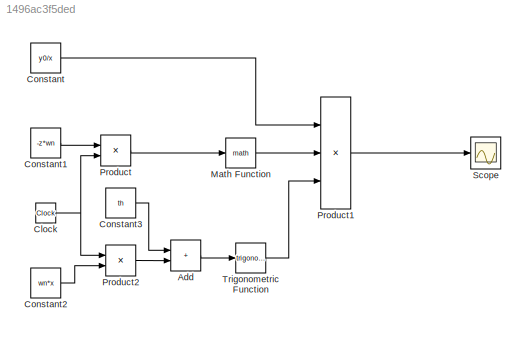
MODEL slx_1496ac3f5ded
KIND model
CONFIG AbsTol = auto
CONFIG EnableMultiTasking = off
CONFIG FixedStep = auto
CONFIG MaxStep = auto
CONFIG MinStep = auto
CONFIG RelTol = 1e-3
CONFIG SampleTimeConstraint = Unconstrained
CONFIG SolverName = VariableStepAuto
CONFIG StartTime = 0.0
CONFIG StopTime = 10.0
BLOCK [Sum] Add
  IconShape = rectangular
BLOCK [Clock] Clock
BLOCK [Constant] Constant
  Value = y0/x
BLOCK [Constant] Constant1
  NameLocation = top
  Value = -z*wn
BLOCK [Constant] Constant2
  Value = wn*x
BLOCK [Constant] Constant3
  NameLocation = top
  Value = th
BLOCK [Math] Math Function
BLOCK [Product] Product
BLOCK [Product] Product1
  Inputs = 3
BLOCK [Product] Product2
BLOCK [Scope] Scope
  Floating = off
  NumInputPorts = 1
  ScopeSpecificationString = Simulink.scopes.TimeScopeBlockCfg('CurrentConfiguration', extmgr.ConfigurationSet(extmgr.Configuration('Core','General UI',true),extmgr.Configuration('Core','Source UI',true),extmgr.Configuration('Sources','WiredSimulink',true),extmgr.Configuration('Visuals','Time Domain',true,'SerializedDisplays',{struct('MinYLimReal','-0.34915','MaxYLimReal','0.05371','YLabelReal','','MinYLimMag','0.00000','MaxY...<+1481ch>
BLOCK [Trigonometry] Trigonometric Function
LINE Add:1 -> Trigonometric Function:1
NET Clock:1 -> Product2:1, Product:2
LINE Constant1:1 -> Product:1
LINE Constant2:1 -> Product2:2
LINE Constant3:1 -> Add:1
LINE Constant:1 -> Product1:1
LINE Math Function:1 -> Product1:2
LINE Product1:1 -> Scope:1
LINE Product2:1 -> Add:2
LINE Product:1 -> Math Function:1
LINE Trigonometric Function:1 -> Product1:3
note: NET lines group one-source signal fan-out (src -> all destinations, sorted); 1:1 wires keep LINE
